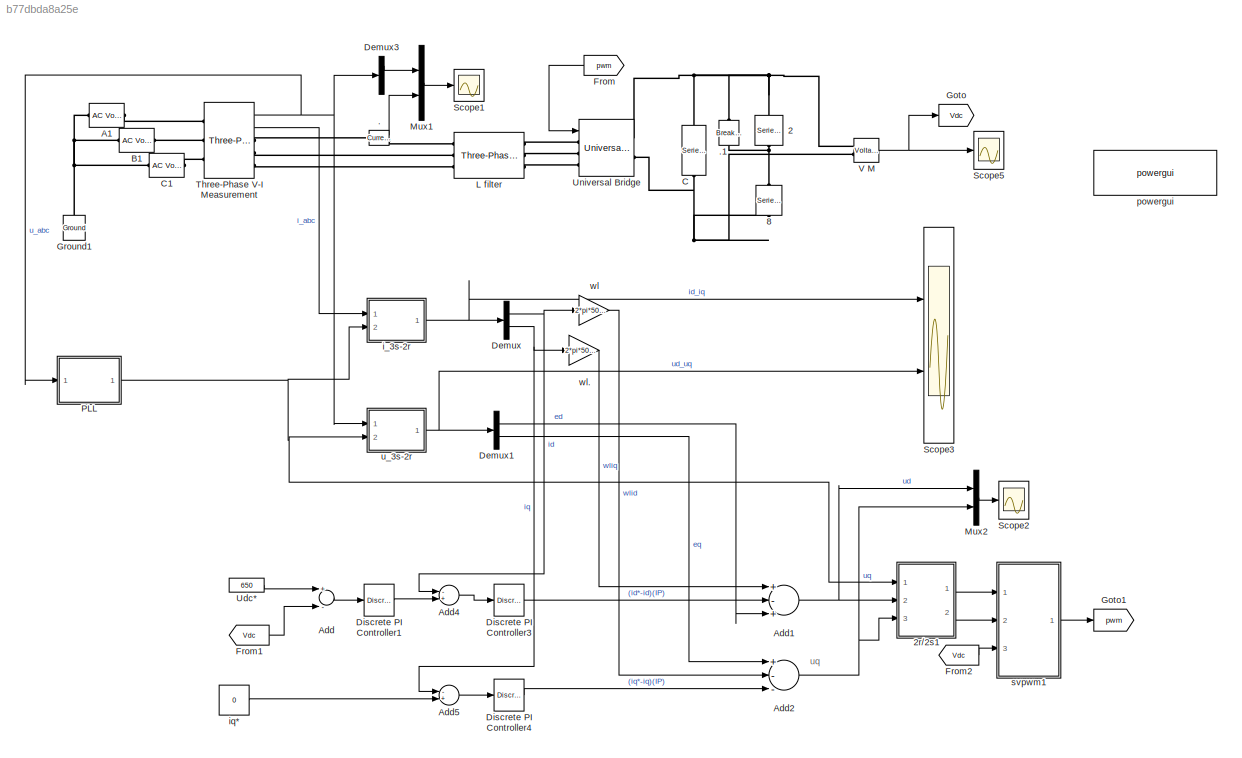
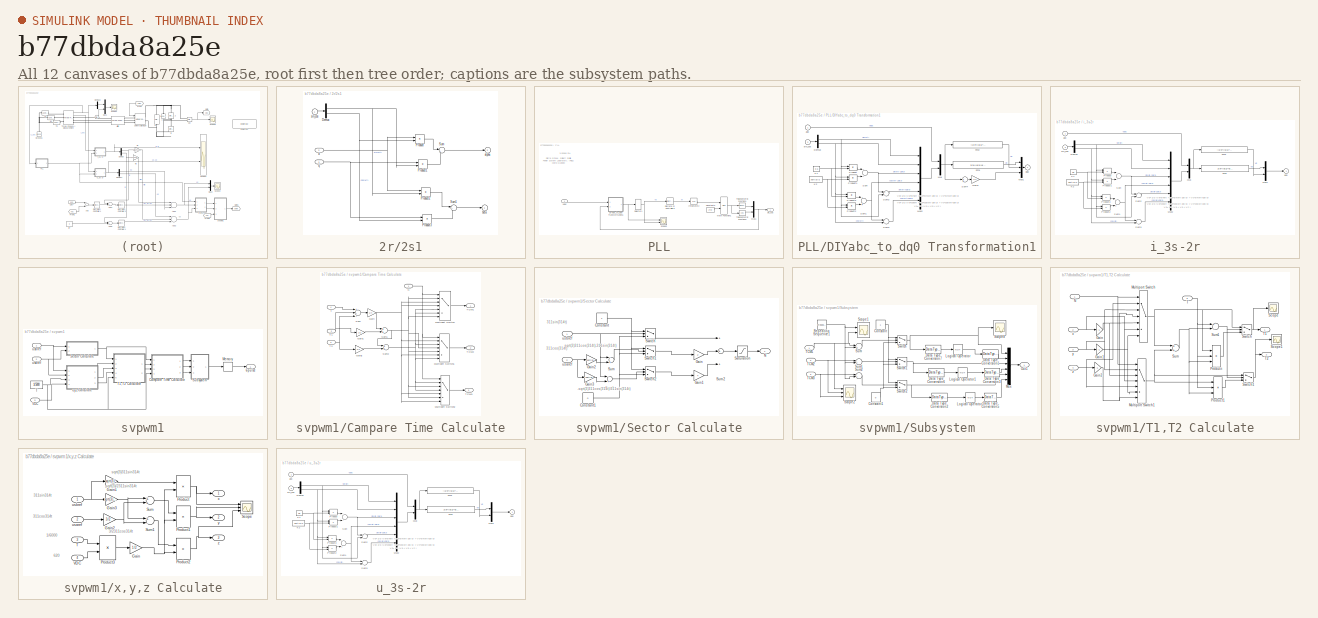
[diagram: thumbnail index - all 12 canvases of the model, root first then tree order]
MODEL slx_b77dbda8a25e
KIND model
CONFIG AbsTol = auto
CONFIG EnableMultiTasking = on
CONFIG FixedStep = 0.00001
CONFIG MaxStep = auto
CONFIG MinStep = auto
CONFIG RelTol = 1e-3
CONFIG SampleTimeConstraint = Unconstrained
CONFIG Solver = ode23tb
CONFIG SolverName = ode23tb
CONFIG StartTime = 0.0
CONFIG StopTime = 1.5
BLOCK [Reference] .  REF=powerlib/Measurements/Current Measurement
  Ports = [0, 1, 0, 0, 0, 1, 1]
  SourceBlock = powerlib/Measurements/Current Measurement
  SourceProductBaseCode = PS
  SourceProductName = Simscape Electrical
  SourceType = Current Measurement
BLOCK [Reference] .1  REF=powerlib/Elements/Breaker
  AttributesFormatString = \n
  Ports = [0, 0, 0, 0, 0, 1, 1]
  SourceBlock = powerlib/Elements/Breaker
  SourceProductBaseCode = PS
  SourceProductName = Simscape Electrical
  SourceType = Breaker
BLOCK [Reference] 2  REF=powerlib/Elements/Series RLC Branch
  Ports = [0, 0, 0, 0, 0, 1, 1]
  SourceBlock = powerlib/Elements/Series RLC Branch
  SourceProductBaseCode = PS
  SourceProductName = Simscape Electrical
  SourceType = Series RLC Branch
BLOCK [SubSystem] 2r//2s1
  Ports = [3, 2]
  RequestExecContextInheritance = off
BLOCK [Demux] 2r//2s1/Demux
  DisplayOption = bar
  Outputs = 2
  Ports = [1, 2]
BLOCK [Product] 2r//2s1/Product
  InputSameDT = off
  OutDataTypeStr = Inherit: Inherit via internal rule
  Ports = [2, 1]
  SaturateOnIntegerOverflow = off
BLOCK [Product] 2r//2s1/Product1
  InputSameDT = off
  OutDataTypeStr = Inherit: Inherit via internal rule
  Ports = [2, 1]
  SaturateOnIntegerOverflow = off
BLOCK [Product] 2r//2s1/Product2
  InputSameDT = off
  OutDataTypeStr = Inherit: Inherit via internal rule
  Ports = [2, 1]
  SaturateOnIntegerOverflow = off
BLOCK [Product] 2r//2s1/Product3
  InputSameDT = off
  OutDataTypeStr = Inherit: Inherit via internal rule
  Ports = [2, 1]
  SaturateOnIntegerOverflow = off
BLOCK [Sum] 2r//2s1/Sum
  IconShape = round
  InputSameDT = off
  Inputs = |+-
  OutDataTypeStr = Inherit: Inherit via internal rule
  Ports = [2, 1]
  SaturateOnIntegerOverflow = off
BLOCK [Sum] 2r//2s1/Sum1
  IconShape = round
  InputSameDT = off
  Inputs = |++
  OutDataTypeStr = Inherit: Inherit via internal rule
  Ports = [2, 1]
  SaturateOnIntegerOverflow = off
BLOCK [Outport] 2r//2s1/alpha
  IconDisplay = Port number
  InitialOutput = 0
  Port = 2
BLOCK [Outport] 2r//2s1/beta
  IconDisplay = Port number
  InitialOutput = 0
BLOCK [Inport] 2r//2s1/d
  IconDisplay = Port number
  Port = 2
BLOCK [Inport] 2r//2s1/q
  IconDisplay = Port number
  Port = 3
BLOCK [Inport] 2r//2s1/sin_cos
  IconDisplay = Port number
  PortDimensions = 2
BLOCK [Reference] 8  REF=powerlib/Elements/Series RLC Branch
  Ports = [0, 0, 0, 0, 0, 1, 1]
  SourceBlock = powerlib/Elements/Series RLC Branch
  SourceProductBaseCode = PS
  SourceProductName = Simscape Electrical
  SourceType = Series RLC Branch
BLOCK [Reference] A1  REF=powerlib/Electrical
Sources/AC Voltage Source
  Ports = [0, 0, 0, 0, 0, 1, 1]
  SourceBlock = powerlib/Electrical\nSources/AC Voltage Source
  SourceProductBaseCode = PS
  SourceProductName = Simscape Electrical
  SourceType = AC Voltage Source
BLOCK [Sum] Add
  InputSameDT = off
  Inputs = +-
  OutDataTypeStr = Inherit: Inherit via internal rule
  Ports = [2, 1]
  SaturateOnIntegerOverflow = off
BLOCK [Sum] Add1
  InputSameDT = off
  Inputs = +-+
  OutDataTypeStr = Inherit: Inherit via internal rule
  Ports = [3, 1]
  SaturateOnIntegerOverflow = off
BLOCK [Sum] Add2
  InputSameDT = off
  Inputs = +--
  OutDataTypeStr = Inherit: Inherit via internal rule
  Ports = [3, 1]
  SaturateOnIntegerOverflow = off
BLOCK [Sum] Add4
  InputSameDT = off
  Inputs = -+
  OutDataTypeStr = Inherit: Inherit via internal rule
  Ports = [2, 1]
  SaturateOnIntegerOverflow = off
BLOCK [Sum] Add5
  InputSameDT = off
  Inputs = -+
  OutDataTypeStr = Inherit: Inherit via internal rule
  Ports = [2, 1]
  SaturateOnIntegerOverflow = off
BLOCK [Reference] B1  REF=powerlib/Electrical
Sources/AC Voltage Source
  Ports = [0, 0, 0, 0, 0, 1, 1]
  SourceBlock = powerlib/Electrical\nSources/AC Voltage Source
  SourceProductBaseCode = PS
  SourceProductName = Simscape Electrical
  SourceType = AC Voltage Source
BLOCK [Reference] C   REF=powerlib/Elements/Series RLC Branch
  Ports = [0, 0, 0, 0, 0, 1, 1]
  SourceBlock = powerlib/Elements/Series RLC Branch
  SourceProductBaseCode = PS
  SourceProductName = Simscape Electrical
  SourceType = Series RLC Branch
BLOCK [Reference] C1  REF=powerlib/Electrical
Sources/AC Voltage Source
  Ports = [0, 0, 0, 0, 0, 1, 1]
  SourceBlock = powerlib/Electrical\nSources/AC Voltage Source
  SourceProductBaseCode = PS
  SourceProductName = Simscape Electrical
  SourceType = AC Voltage Source
BLOCK [Demux] Demux
  DisplayOption = bar
  Outputs = 2
  Ports = [1, 2]
BLOCK [Demux] Demux1
  DisplayOption = bar
  Outputs = 2
  Ports = [1, 2]
BLOCK [Demux] Demux3
  DisplayOption = bar
  Outputs = 3
  Ports = [1, 3]
BLOCK [Reference] Discrete PI Controller1  REF=powerlib_extras/Discrete 
Control Blocks/Discrete
PI Controller
  Ports = [1, 1]
  SourceBlock = powerlib_extras/Discrete \nControl Blocks/Discrete\nPI Controller
  SourceProductBaseCode = PS
  SourceProductName = Simscape Electrical
  SourceType = Discrete PI Controller
BLOCK [Reference] Discrete PI Controller3  REF=powerlib_extras/Discrete 
Control Blocks/Discrete
PI Controller
  Ports = [1, 1]
  SourceBlock = powerlib_extras/Discrete \nControl Blocks/Discrete\nPI Controller
  SourceProductBaseCode = PS
  SourceProductName = Simscape Electrical
  SourceType = Discrete PI Controller
BLOCK [Reference] Discrete PI Controller4  REF=powerlib_extras/Discrete 
Control Blocks/Discrete
PI Controller
  Ports = [1, 1]
  SourceBlock = powerlib_extras/Discrete \nControl Blocks/Discrete\nPI Controller
  SourceProductBaseCode = PS
  SourceProductName = Simscape Electrical
  SourceType = Discrete PI Controller
BLOCK [From] From
  GotoTag = pwm
  TagVisibility = global
BLOCK [From] From1
  GotoTag = Vdc
  TagVisibility = global
BLOCK [From] From2
  GotoTag = Vdc
  TagVisibility = global
BLOCK [Goto] Goto
  GotoTag = Vdc
  TagVisibility = global
BLOCK [Goto] Goto1
  GotoTag = pwm
  TagVisibility = global
BLOCK [Reference] Ground1  REF=powerlib/Elements/Ground
  Ports = [0, 0, 0, 0, 0, 1]
  SourceBlock = powerlib/Elements/Ground
  SourceProductBaseCode = PS
  SourceProductName = Simscape Electrical
  SourceType = Ground
BLOCK [Reference] L filter  REF=powerlib/Elements/Three-Phase
Series RLC Branch
  AttributesFormatString = \n
  Ports = [0, 0, 0, 0, 0, 3, 3]
  SourceBlock = powerlib/Elements/Three-Phase\nSeries RLC Branch
  SourceProductBaseCode = PS
  SourceProductName = Simscape Electrical
  SourceType = Three-Phase Series RLC Branch
BLOCK [Mux] Mux1
  DisplayOption = bar
  Inputs = 2
  Ports = [2, 1]
BLOCK [Mux] Mux2
  DisplayOption = bar
  Inputs = 2
  Ports = [2, 1]
BLOCK [SubSystem] PLL
  Ports = [1, 1]
  RequestExecContextInheritance = off
BLOCK [Constant] PLL/Constant3
  Value = 2*pi
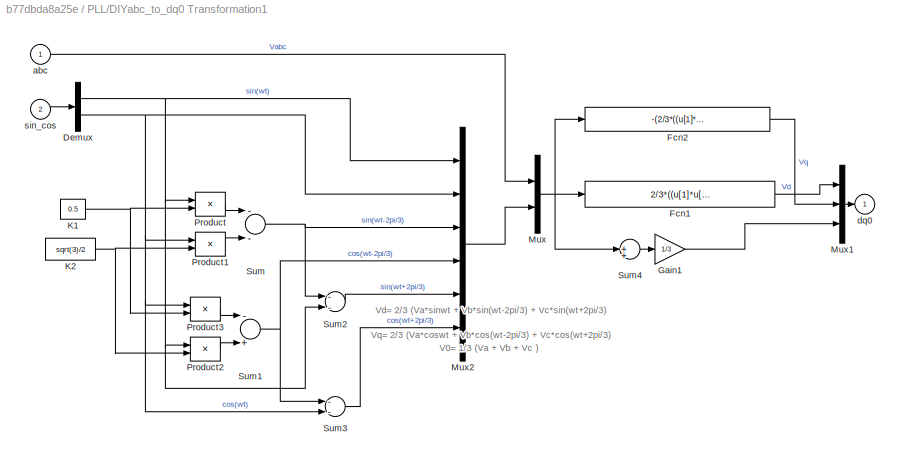
BLOCK [SubSystem] PLL/DIYabc_to_dq0 Transformation1
  AncestorBlock = powerlib_extras/Measurements/abc_to_dq0\nTransformation
  Ports = [2, 1]
  RequestExecContextInheritance = off
BLOCK [Demux] PLL/DIYabc_to_dq0 Transformation1/Demux
  DisplayOption = bar
  Outputs = 2
  Ports = [1, 2]
BLOCK [Fcn] PLL/DIYabc_to_dq0 Transformation1/Fcn1
  Expr = 2/3*((u[1]*u[5])+(u[2]*u[7])+(u[3]*u[9]))
BLOCK [Fcn] PLL/DIYabc_to_dq0 Transformation1/Fcn2
  Expr = -(2/3*((u[1]*u[4])+(u[2]*u[6])+(u[3]*u[8])))
BLOCK [Gain] PLL/DIYabc_to_dq0 Transformation1/Gain1
  Gain = 1/3
BLOCK [Constant] PLL/DIYabc_to_dq0 Transformation1/K1
  Value = 0.5
BLOCK [Constant] PLL/DIYabc_to_dq0 Transformation1/K2
  Value = sqrt(3)/2
BLOCK [Mux] PLL/DIYabc_to_dq0 Transformation1/Mux
  DisplayOption = bar
  Inputs = 2
  Ports = [2, 1]
BLOCK [Mux] PLL/DIYabc_to_dq0 Transformation1/Mux1
  DisplayOption = bar
  Inputs = 3
  Ports = [3, 1]
BLOCK [Mux] PLL/DIYabc_to_dq0 Transformation1/Mux2
  DisplayOption = bar
  Inputs = 6
  Ports = [6, 1]
BLOCK [Product] PLL/DIYabc_to_dq0 Transformation1/Product
  Ports = [2, 1]
  RndMeth = Floor
BLOCK [Product] PLL/DIYabc_to_dq0 Transformation1/Product1
  Ports = [2, 1]
  RndMeth = Floor
BLOCK [Product] PLL/DIYabc_to_dq0 Transformation1/Product2
  Ports = [2, 1]
  RndMeth = Floor
BLOCK [Product] PLL/DIYabc_to_dq0 Transformation1/Product3
  Ports = [2, 1]
  RndMeth = Floor
BLOCK [Sum] PLL/DIYabc_to_dq0 Transformation1/Sum
  Inputs = --
  Ports = [2, 1]
BLOCK [Sum] PLL/DIYabc_to_dq0 Transformation1/Sum1
  Inputs = -+
  Ports = [2, 1]
BLOCK [Sum] PLL/DIYabc_to_dq0 Transformation1/Sum2
  Inputs = --
  Ports = [2, 1]
BLOCK [Sum] PLL/DIYabc_to_dq0 Transformation1/Sum3
  Inputs = --
  Ports = [2, 1]
BLOCK [Sum] PLL/DIYabc_to_dq0 Transformation1/Sum4
  Inputs = 1
  Ports = [1, 1]
BLOCK [Inport] PLL/DIYabc_to_dq0 Transformation1/abc
  IconDisplay = Port number
  PortDimensions = 3
BLOCK [Outport] PLL/DIYabc_to_dq0 Transformation1/dq0
  IconDisplay = Port number
  InitialOutput = 0
BLOCK [Inport] PLL/DIYabc_to_dq0 Transformation1/sin_cos
  IconDisplay = Port number
  Port = 2
  PortDimensions = 2
BLOCK [Reference] PLL/Discrete PI Controller3  REF=powerlib_extras/Discrete 
Control Blocks/Discrete
PI Controller
  Ports = [1, 1]
  SourceBlock = powerlib_extras/Discrete \nControl Blocks/Discrete\nPI Controller
  SourceProductBaseCode = PS
  SourceProductName = Simscape Electrical
  SourceType = Discrete PI Controller
BLOCK [Integrator] PLL/Integrator2
  Ports = [1, 1]
BLOCK [Math] PLL/Math Function1
  Operator = mod
  Ports = [2, 1]
BLOCK [Mux] PLL/Mux1
  DisplayOption = bar
  Inputs = 2
  Ports = [2, 1]
BLOCK [Scope] PLL/Scope3
  Floating = off
  NumInputPorts = 2
  Ports = [2]
  ScopeSpecificationString = C++SS(StrPVP('Open','off'),StrPVP('TimeRange','auto'),StrPVP('TickLabels','OneTimeTick'),StrPVP('LimitDataPoints','off'),StrPVP('MaxDataPoints','5000'),StrPVP('SaveToWorkspace','off'),StrPVP('SaveName','ScopeData12'),StrPVP('YMin','-44.36843~-7.44785'),StrPVP('YMax','350.48538~18.20012'),StrPVP('BlockParamSampleInput','off'),StrPVP('BlockParamSampleTime','-1'),StrPVP('ZoomMode','on'),StrPVP('Grid'...<+201ch>
BLOCK [Selector] PLL/Selector1
  IndexOptions = Index vector (dialog)
  Indices = 2
  InputPortWidth = 3
  OutputSizes = 1
  Ports = [1, 1]
BLOCK [Trigonometry] PLL/Trigonometric Function1
  Ports = [1, 1]
BLOCK [Trigonometry] PLL/Trigonometric Function3
  Operator = cos
  Ports = [1, 1]
BLOCK [Inport] PLL/Vabc
  IconDisplay = Port number
  PortDimensions = 3
BLOCK [Outport] PLL/sin_cos
  IconDisplay = Port number
BLOCK [Scope] Scope1
  Floating = off
  NumInputPorts = 1
  Ports = [1]
  ScopeSpecificationString = C++SS(StrPVP('Open','off'),StrPVP('TimeRange','auto'),StrPVP('TickLabels','OneTimeTick'),StrPVP('LimitDataPoints','off'),StrPVP('MaxDataPoints','5000'),StrPVP('SaveToWorkspace','off'),StrPVP('SaveName','ScopeData'),StrPVP('YMin','-479.93424'),StrPVP('YMax','406.4876'),StrPVP('BlockParamSampleInput','off'),StrPVP('BlockParamSampleTime','-1'),StrPVP('ZoomMode','on'),StrPVP('Grid','on'),StrPVP('DataF...<+152ch>
BLOCK [Scope] Scope2
  Floating = off
  NumInputPorts = 1
  Ports = [1]
  ScopeSpecificationString = C++SS(StrPVP('Open','off'),StrPVP('TimeRange','auto'),StrPVP('TickLabels','OneTimeTick'),StrPVP('LimitDataPoints','off'),StrPVP('MaxDataPoints','5000'),StrPVP('SaveToWorkspace','off'),StrPVP('SaveName','ScopeData2'),StrPVP('YMin','-7003.21346'),StrPVP('YMax','2298.48553'),StrPVP('BlockParamSampleInput','off'),StrPVP('BlockParamSampleTime','-1'),StrPVP('ZoomMode','on'),StrPVP('Grid','on'),StrPVP('D...<+158ch>
BLOCK [Scope] Scope3
  Floating = off
  NumInputPorts = 2
  Ports = [2]
  ScopeSpecificationString = C++SS(StrPVP('Open','off'),StrPVP('TimeRange','auto'),StrPVP('TickLabels','OneTimeTick'),StrPVP('LimitDataPoints','off'),StrPVP('MaxDataPoints','5000'),StrPVP('SaveToWorkspace','off'),StrPVP('SaveName','ScopeData3'),StrPVP('YMin','-344.98603~-44.36843'),StrPVP('YMax','420.48098~350.48538'),StrPVP('BlockParamSampleInput','off'),StrPVP('BlockParamSampleTime','-1'),StrPVP('ZoomMode','on'),StrPVP('Gri...<+204ch>
BLOCK [Scope] Scope5
  Floating = off
  NumInputPorts = 1
  Ports = [1]
  ScopeSpecificationString = C++SS(StrPVP('Open','off'),StrPVP('TimeRange','auto'),StrPVP('TickLabels','OneTimeTick'),StrPVP('LimitDataPoints','off'),StrPVP('MaxDataPoints','5000'),StrPVP('SaveToWorkspace','on'),StrPVP('SaveName','ScopeData5'),StrPVP('YMin','461.71177'),StrPVP('YMax','790.31086'),StrPVP('BlockParamSampleInput','off'),StrPVP('BlockParamSampleTime','-1'),StrPVP('ZoomMode','on'),StrPVP('Grid','on'),StrPVP('DataF...<+152ch>
BLOCK [Reference] Three-Phase V-I Measurement  REF=powerlib/Measurements/Three-Phase
V-I Measurement
  Ports = [0, 2, 0, 0, 0, 3, 3]
  SourceBlock = powerlib/Measurements/Three-Phase\nV-I Measurement
  SourceProductBaseCode = PS
  SourceProductName = Simscape Electrical
  SourceType = Three-Phase VI Measurement
BLOCK [Constant] Udc*
  Value = 650
BLOCK [Reference] Universal Bridge  REF=powerlib/Power
Electronics/Universal Bridge
  Ports = [1, 0, 0, 0, 0, 3, 2]
  SourceBlock = powerlib/Power\nElectronics/Universal Bridge
  SourceProductBaseCode = PS
  SourceProductName = Simscape Electrical
  SourceType = Universal Bridge
BLOCK [Reference] V M  REF=powerlib/Measurements/Voltage Measurement
  Ports = [0, 1, 0, 0, 0, 2]
  SourceBlock = powerlib/Measurements/Voltage Measurement
  SourceProductBaseCode = PS
  SourceProductName = Simscape Electrical
  SourceType = Voltage Measurement
BLOCK [SubSystem] i_3s-2r
  AncestorBlock = powerlib_extras/Measurements/abc_to_dq0\nTransformation
  Ports = [2, 1]
  RequestExecContextInheritance = off
BLOCK [Demux] i_3s-2r/Demux
  DisplayOption = bar
  Outputs = 2
  Ports = [1, 2]
BLOCK [Fcn] i_3s-2r/Fcn1
  Expr = 2/3*((u[1]*u[5])+(u[2]*u[7])+(u[3]*u[9]))
BLOCK [Fcn] i_3s-2r/Fcn2
  Expr = -(2/3*((u[1]*u[4])+(u[2]*u[6])+(u[3]*u[8])))
BLOCK [Constant] i_3s-2r/K1
  Value = 0.5
BLOCK [Constant] i_3s-2r/K2
  Value = sqrt(3)/2
BLOCK [Mux] i_3s-2r/Mux
  DisplayOption = bar
  Inputs = 2
  Ports = [2, 1]
BLOCK [Mux] i_3s-2r/Mux1
  DisplayOption = bar
  Inputs = 2
  Ports = [2, 1]
BLOCK [Mux] i_3s-2r/Mux2
  DisplayOption = bar
  Inputs = 6
  Ports = [6, 1]
BLOCK [Product] i_3s-2r/Product
  Ports = [2, 1]
  RndMeth = Floor
BLOCK [Product] i_3s-2r/Product1
  Ports = [2, 1]
  RndMeth = Floor
BLOCK [Product] i_3s-2r/Product2
  Ports = [2, 1]
  RndMeth = Floor
BLOCK [Product] i_3s-2r/Product3
  Ports = [2, 1]
  RndMeth = Floor
BLOCK [Sum] i_3s-2r/Sum
  Inputs = --
  Ports = [2, 1]
BLOCK [Sum] i_3s-2r/Sum1
  Inputs = -+
  Ports = [2, 1]
BLOCK [Sum] i_3s-2r/Sum2
  Inputs = --
  Ports = [2, 1]
BLOCK [Sum] i_3s-2r/Sum3
  Inputs = --
  Ports = [2, 1]
BLOCK [Inport] i_3s-2r/abc
  IconDisplay = Port number
  PortDimensions = 3
BLOCK [Outport] i_3s-2r/dq0
  IconDisplay = Port number
  InitialOutput = 0
BLOCK [Inport] i_3s-2r/sin_cos
  IconDisplay = Port number
  Port = 2
  PortDimensions = 2
BLOCK [Constant] iq*
  Value = 0
BLOCK [Reference] powergui  REF=powerlib/powergui
  Ports = []
  SourceBlock = powerlib/powergui
  SourceProductBaseCode = PS
  SourceProductName = Simscape Electrical
  SourceType = PSB option menu block
BLOCK [SubSystem] svpwm1
  Ports = [3, 1]
  RequestExecContextInheritance = off
BLOCK [Outport] svpwm1/6pulse
  IconDisplay = Port number
BLOCK [SubSystem] svpwm1/Campare Time Calculate
  Ports = [4, 3]
  RequestExecContextInheritance = off
BLOCK [Gain] svpwm1/Campare Time Calculate/Gain
  Gain = 1/4
BLOCK [Gain] svpwm1/Campare Time Calculate/Gain1
  Gain = 1/2
BLOCK [Gain] svpwm1/Campare Time Calculate/Gain2
  Gain = 1/2
BLOCK [MultiPortSwitch] svpwm1/Campare Time Calculate/Multiport Switch
  InputSameDT = off
  Inputs = 6
  Ports = [7, 1]
BLOCK [MultiPortSwitch] svpwm1/Campare Time Calculate/Multiport Switch1
  InputSameDT = off
  Inputs = 6
  Ports = [7, 1]
BLOCK [MultiPortSwitch] svpwm1/Campare Time Calculate/Multiport Switch2
  InputSameDT = off
  Inputs = 6
  Ports = [7, 1]
BLOCK [Inport] svpwm1/Campare Time Calculate/N
  IconDisplay = Port number
BLOCK [Sum] svpwm1/Campare Time Calculate/Sum
  InputSameDT = off
  Inputs = +--
  OutDataTypeStr = Inherit: Inherit via internal rule
  Ports = [3, 1]
BLOCK [Sum] svpwm1/Campare Time Calculate/Sum1
  InputSameDT = off
  OutDataTypeStr = Inherit: Inherit via internal rule
  Ports = [2, 1]
BLOCK [Sum] svpwm1/Campare Time Calculate/Sum2
  InputSameDT = off
  OutDataTypeStr = Inherit: Inherit via internal rule
  Ports = [2, 1]
BLOCK [Inport] svpwm1/Campare Time Calculate/T
  IconDisplay = Port number
  Port = 4
BLOCK [Inport] svpwm1/Campare Time Calculate/T1
  IconDisplay = Port number
  Port = 2
BLOCK [Inport] svpwm1/Campare Time Calculate/T2
  IconDisplay = Port number
  Port = 3
BLOCK [Outport] svpwm1/Campare Time Calculate/TCM1
  IconDisplay = Port number
BLOCK [Outport] svpwm1/Campare Time Calculate/TCM2
  IconDisplay = Port number
  Port = 2
BLOCK [Outport] svpwm1/Campare Time Calculate/TCM3
  IconDisplay = Port number
  Port = 3
BLOCK [Memory] svpwm1/Memory
BLOCK [SubSystem] svpwm1/Sector Calculate
  Ports = [2, 1]
  RequestExecContextInheritance = off
BLOCK [Constant] svpwm1/Sector Calculate/Constant
BLOCK [Constant] svpwm1/Sector Calculate/Constant1
  Value = 0
BLOCK [Gain] svpwm1/Sector Calculate/Gain
  Gain = 2
BLOCK [Gain] svpwm1/Sector Calculate/Gain1
  Gain = 4
BLOCK [Gain] svpwm1/Sector Calculate/Gain2
  Gain = sqrt(3)
BLOCK [Gain] svpwm1/Sector Calculate/Gain3
  Gain = -sqrt(3)
BLOCK [Outport] svpwm1/Sector Calculate/N
  IconDisplay = Port number
BLOCK [Saturate] svpwm1/Sector Calculate/Saturation
  InputPortMap = u0
  LowerLimit = 1
  Ports = [1, 1]
  UpperLimit = 6
BLOCK [Sum] svpwm1/Sector Calculate/Sum
  InputSameDT = off
  Inputs = -+
  OutDataTypeStr = Inherit: Inherit via internal rule
  Ports = [2, 1]
BLOCK [Sum] svpwm1/Sector Calculate/Sum1
  InputSameDT = off
  Inputs = -+
  OutDataTypeStr = Inherit: Inherit via internal rule
  Ports = [2, 1]
BLOCK [Sum] svpwm1/Sector Calculate/Sum2
  InputSameDT = off
  Inputs = +++
  OutDataTypeStr = Inherit: Inherit via internal rule
  Ports = [3, 1]
BLOCK [Switch] svpwm1/Sector Calculate/Switch
  InputSameDT = off
BLOCK [Switch] svpwm1/Sector Calculate/Switch1
  InputSameDT = off
BLOCK [Switch] svpwm1/Sector Calculate/Switch2
  InputSameDT = off
BLOCK [Inport] svpwm1/Sector Calculate/usaref
  IconDisplay = Port number
  Port = 2
BLOCK [Inport] svpwm1/Sector Calculate/usbref
  IconDisplay = Port number
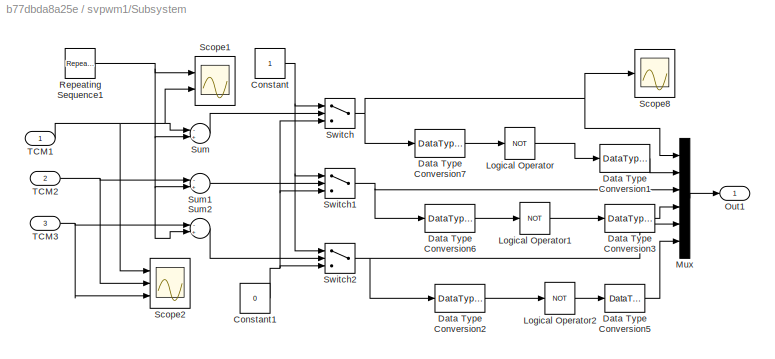
BLOCK [SubSystem] svpwm1/Subsystem
  Ports = [3, 1]
  RequestExecContextInheritance = off
BLOCK [Constant] svpwm1/Subsystem/Constant
BLOCK [Constant] svpwm1/Subsystem/Constant1
  Value = 0
BLOCK [DataTypeConversion] svpwm1/Subsystem/Data Type Conversion1
  OutDataTypeStr = double
BLOCK [DataTypeConversion] svpwm1/Subsystem/Data Type Conversion2
  OutDataTypeStr = boolean
BLOCK [DataTypeConversion] svpwm1/Subsystem/Data Type Conversion3
  OutDataTypeStr = double
BLOCK [DataTypeConversion] svpwm1/Subsystem/Data Type Conversion5
  OutDataTypeStr = double
BLOCK [DataTypeConversion] svpwm1/Subsystem/Data Type Conversion6
  OutDataTypeStr = boolean
BLOCK [DataTypeConversion] svpwm1/Subsystem/Data Type Conversion7
  OutDataTypeStr = boolean
BLOCK [Logic] svpwm1/Subsystem/Logical Operator
  AllPortsSameDT = off
  Operator = NOT
  Ports = [1, 1]
BLOCK [Logic] svpwm1/Subsystem/Logical Operator1
  AllPortsSameDT = off
  Operator = NOT
  Ports = [1, 1]
BLOCK [Logic] svpwm1/Subsystem/Logical Operator2
  AllPortsSameDT = off
  Operator = NOT
  Ports = [1, 1]
BLOCK [Mux] svpwm1/Subsystem/Mux
  DisplayOption = bar
  Inputs = 6
  Ports = [6, 1]
BLOCK [Outport] svpwm1/Subsystem/Out1
  IconDisplay = Port number
BLOCK [Reference] svpwm1/Subsystem/Repeating Sequence1  REF=simulink/Sources/Repeating
Sequence
  Ports = [0, 1]
  SourceBlock = simulink/Sources/Repeating\nSequence
  SourceProductBaseCode = SL
  SourceProductName = Simulink
  SourceType = Repeating table
BLOCK [Scope] svpwm1/Subsystem/Scope1
  Floating = off
  NumInputPorts = 2
  Ports = [2]
  ScopeSpecificationString = C++SS(StrPVP('Open','off'),StrPVP('TimeRange','0.028'),StrPVP('TickLabels','OneTimeTick'),StrPVP('LimitDataPoints','off'),StrPVP('MaxDataPoints','5000'),StrPVP('SaveToWorkspace','off'),StrPVP('SaveName','ScopeData15'),StrPVP('YMin','0~2.45e-005'),StrPVP('YMax','8.5e-005~2.64e-005'),StrPVP('BlockParamSampleInput','off'),StrPVP('BlockParamSampleTime','-1'),StrPVP('ZoomMode','xonly'),StrPVP('Grid','o...<+198ch>
BLOCK [Scope] svpwm1/Subsystem/Scope2
  Floating = off
  NumInputPorts = 3
  Ports = [3]
  ScopeSpecificationString = C++SS(StrPVP('Open','off'),StrPVP('TimeRange','0.07000000000000001'),StrPVP('TickLabels','OneTimeTick'),StrPVP('LimitDataPoints','off'),StrPVP('MaxDataPoints','5000'),StrPVP('SaveToWorkspace','off'),StrPVP('SaveName','ScopeData19'),StrPVP('YMin','2.25e-005~2.25e-005~2.25e-005'),StrPVP('YMax','6e-005~6e-005~6e-005'),StrPVP('BlockParamSampleInput','off'),StrPVP('BlockParamSampleTime','-1'),StrPVP('Z...<+261ch>
BLOCK [Scope] svpwm1/Subsystem/Scope8
  Floating = off
  NumInputPorts = 1
  Ports = [1]
  ScopeSpecificationString = C++SS(StrPVP('Open','off'),StrPVP('TimeRange','0.07000000000000001'),StrPVP('TickLabels','OneTimeTick'),StrPVP('LimitDataPoints','off'),StrPVP('MaxDataPoints','5000'),StrPVP('SaveToWorkspace','off'),StrPVP('SaveName','ScopeData13'),StrPVP('YMin','0'),StrPVP('YMax','2'),StrPVP('BlockParamSampleInput','off'),StrPVP('BlockParamSampleTime','-1'),StrPVP('ZoomMode','xonly'),StrPVP('Grid','on'),StrPVP('D...<+156ch>
BLOCK [Sum] svpwm1/Subsystem/Sum
  InputSameDT = off
  Inputs = -+
  OutDataTypeStr = Inherit: Inherit via internal rule
  Ports = [2, 1]
BLOCK [Sum] svpwm1/Subsystem/Sum1
  InputSameDT = off
  Inputs = -+
  OutDataTypeStr = Inherit: Inherit via internal rule
  Ports = [2, 1]
BLOCK [Sum] svpwm1/Subsystem/Sum2
  InputSameDT = off
  Inputs = -+
  OutDataTypeStr = Inherit: Inherit via internal rule
  Ports = [2, 1]
BLOCK [Switch] svpwm1/Subsystem/Switch
  InputSameDT = off
BLOCK [Switch] svpwm1/Subsystem/Switch1
  InputSameDT = off
BLOCK [Switch] svpwm1/Subsystem/Switch2
  InputSameDT = off
BLOCK [Inport] svpwm1/Subsystem/TCM1
  IconDisplay = Port number
BLOCK [Inport] svpwm1/Subsystem/TCM2
  IconDisplay = Port number
  Port = 2
BLOCK [Inport] svpwm1/Subsystem/TCM3
  IconDisplay = Port number
  Port = 3
BLOCK [Constant] svpwm1/T
  Value = 1/5000
BLOCK [SubSystem] svpwm1/T1,T2 Calculate
  Ports = [5, 2]
  RequestExecContextInheritance = off
BLOCK [Gain] svpwm1/T1,T2 Calculate/Gain
  Gain = -1
BLOCK [Gain] svpwm1/T1,T2 Calculate/Gain1
  Gain = -1
BLOCK [Gain] svpwm1/T1,T2 Calculate/Gain2
  Gain = -1
BLOCK [MultiPortSwitch] svpwm1/T1,T2 Calculate/Multiport Switch
  InputSameDT = off
  Inputs = 6
  Ports = [7, 1]
BLOCK [MultiPortSwitch] svpwm1/T1,T2 Calculate/Multiport Switch1
  InputSameDT = off
  Inputs = 6
  Ports = [7, 1]
BLOCK [Inport] svpwm1/T1,T2 Calculate/N
  IconDisplay = Port number
BLOCK [Product] svpwm1/T1,T2 Calculate/Product
  InputSameDT = off
  Inputs = **/
  Ports = [3, 1]
  RndMeth = Floor
BLOCK [Product] svpwm1/T1,T2 Calculate/Product1
  InputSameDT = off
  Inputs = **/
  Ports = [3, 1]
  RndMeth = Floor
BLOCK [Scope] svpwm1/T1,T2 Calculate/Scope
  Floating = off
  NumInputPorts = 1
  Ports = [1]
  ScopeSpecificationString = C++SS(StrPVP('Open','off'),StrPVP('TimeRange','auto'),StrPVP('TickLabels','OneTimeTick'),StrPVP('LimitDataPoints','on'),StrPVP('MaxDataPoints','5000'),StrPVP('SaveToWorkspace','off'),StrPVP('SaveName','ScopeData16'),StrPVP('YMin','3.5e-005'),StrPVP('YMax','6.25e-005'),StrPVP('BlockParamSampleInput','off'),StrPVP('BlockParamSampleTime','-1'),StrPVP('ZoomMode','on'),StrPVP('Grid','on'),StrPVP('DataF...<+152ch>
BLOCK [Scope] svpwm1/T1,T2 Calculate/Scope1
  Floating = off
  NumInputPorts = 1
  Ports = [1]
  ScopeSpecificationString = C++SS(StrPVP('Open','off'),StrPVP('TimeRange','auto'),StrPVP('TickLabels','OneTimeTick'),StrPVP('LimitDataPoints','on'),StrPVP('MaxDataPoints','5000'),StrPVP('SaveToWorkspace','off'),StrPVP('SaveName','ScopeData17'),StrPVP('YMin','1.3e-007'),StrPVP('YMax','2e-007'),StrPVP('BlockParamSampleInput','off'),StrPVP('BlockParamSampleTime','-1'),StrPVP('ZoomMode','on'),StrPVP('Grid','on'),StrPVP('DataForm...<+151ch>
BLOCK [Sum] svpwm1/T1,T2 Calculate/Sum
  InputSameDT = off
  OutDataTypeStr = Inherit: Inherit via internal rule
  Ports = [2, 1]
BLOCK [Sum] svpwm1/T1,T2 Calculate/Sum1
  InputSameDT = off
  Inputs = +-
  OutDataTypeStr = Inherit: Inherit via internal rule
  Ports = [2, 1]
BLOCK [Switch] svpwm1/T1,T2 Calculate/Switch
  InputSameDT = off
BLOCK [Switch] svpwm1/T1,T2 Calculate/Switch1
  InputSameDT = off
BLOCK [Inport] svpwm1/T1,T2 Calculate/T
  IconDisplay = Port number
  Port = 5
BLOCK [Outport] svpwm1/T1,T2 Calculate/T1
  IconDisplay = Port number
BLOCK [Outport] svpwm1/T1,T2 Calculate/T2
  IconDisplay = Port number
  Port = 2
BLOCK [Inport] svpwm1/T1,T2 Calculate/x
  IconDisplay = Port number
  Port = 2
BLOCK [Inport] svpwm1/T1,T2 Calculate/y
  IconDisplay = Port number
  Port = 3
BLOCK [Inport] svpwm1/T1,T2 Calculate/z
  IconDisplay = Port number
  Port = 4
BLOCK [Inport] svpwm1/VDC
  IconDisplay = Port number
  Port = 3
BLOCK [Inport] svpwm1/usaref
  IconDisplay = Port number
  Port = 2
BLOCK [Inport] svpwm1/usbref
  IconDisplay = Port number
BLOCK [SubSystem] svpwm1/x,y,z Calculate
  Ports = [4, 3]
  RequestExecContextInheritance = off
BLOCK [Gain] svpwm1/x,y,z Calculate/Gain
  Gain = 1/2
BLOCK [Gain] svpwm1/x,y,z Calculate/Gain1
  Gain = sqrt(3)
BLOCK [Gain] svpwm1/x,y,z Calculate/Gain2
  Gain = 3/2
BLOCK [Gain] svpwm1/x,y,z Calculate/Gain3
  Gain = sqrt(3)/2
BLOCK [Product] svpwm1/x,y,z Calculate/Product
  InputSameDT = off
  Ports = [2, 1]
  RndMeth = Floor
BLOCK [Product] svpwm1/x,y,z Calculate/Product1
  InputSameDT = off
  Ports = [2, 1]
  RndMeth = Floor
BLOCK [Product] svpwm1/x,y,z Calculate/Product2
  InputSameDT = off
  Ports = [2, 1]
  RndMeth = Floor
BLOCK [Product] svpwm1/x,y,z Calculate/Product3
  InputSameDT = off
  Inputs = */
  Ports = [2, 1]
  RndMeth = Floor
BLOCK [Scope] svpwm1/x,y,z Calculate/Scope
  Floating = off
  NumInputPorts = 3
  Ports = [3]
  ScopeSpecificationString = C++SS(StrPVP('Open','off'),StrPVP('TimeRange','auto'),StrPVP('TickLabels','OneTimeTick'),StrPVP('LimitDataPoints','off'),StrPVP('MaxDataPoints','5000'),StrPVP('SaveToWorkspace','off'),StrPVP('SaveName','ScopeData18'),StrPVP('YMin','-8e-005~-8e-005~-8e-005'),StrPVP('YMax','8e-005~8e-005~8e-005'),StrPVP('BlockParamSampleInput','off'),StrPVP('BlockParamSampleTime','-1'),StrPVP('ZoomMode','on'),StrPVP...<+237ch>
BLOCK [Sum] svpwm1/x,y,z Calculate/Sum
  InputSameDT = off
  OutDataTypeStr = Inherit: Inherit via internal rule
  Ports = [2, 1]
BLOCK [Sum] svpwm1/x,y,z Calculate/Sum1
  InputSameDT = off
  Inputs = +-
  OutDataTypeStr = Inherit: Inherit via internal rule
  Ports = [2, 1]
BLOCK [Inport] svpwm1/x,y,z Calculate/T
  IconDisplay = Port number
  Port = 3
BLOCK [Inport] svpwm1/x,y,z Calculate/VDC
  IconDisplay = Port number
  Port = 4
BLOCK [Inport] svpwm1/x,y,z Calculate/usaref
  IconDisplay = Port number
  Port = 2
BLOCK [Inport] svpwm1/x,y,z Calculate/usbref
  IconDisplay = Port number
BLOCK [Outport] svpwm1/x,y,z Calculate/x
  IconDisplay = Port number
BLOCK [Outport] svpwm1/x,y,z Calculate/y
  IconDisplay = Port number
  Port = 2
BLOCK [Outport] svpwm1/x,y,z Calculate/z
  IconDisplay = Port number
  Port = 3
BLOCK [SubSystem] u_3s-2r
  AncestorBlock = powerlib_extras/Measurements/abc_to_dq0\nTransformation
  Ports = [2, 1]
  RequestExecContextInheritance = off
BLOCK [Demux] u_3s-2r/Demux
  DisplayOption = bar
  Outputs = 2
  Ports = [1, 2]
BLOCK [Fcn] u_3s-2r/Fcn1
  Expr = 2/3*((u[1]*u[5])+(u[2]*u[7])+(u[3]*u[9]))
BLOCK [Fcn] u_3s-2r/Fcn2
  Expr = -(2/3*((u[1]*u[4])+(u[2]*u[6])+(u[3]*u[8])))
BLOCK [Constant] u_3s-2r/K1
  Value = 0.5
BLOCK [Constant] u_3s-2r/K2
  Value = sqrt(3)/2
BLOCK [Mux] u_3s-2r/Mux
  DisplayOption = bar
  Inputs = 2
  Ports = [2, 1]
BLOCK [Mux] u_3s-2r/Mux1
  DisplayOption = bar
  Inputs = 2
  Ports = [2, 1]
BLOCK [Mux] u_3s-2r/Mux2
  DisplayOption = bar
  Inputs = 6
  Ports = [6, 1]
BLOCK [Product] u_3s-2r/Product
  Ports = [2, 1]
  RndMeth = Floor
BLOCK [Product] u_3s-2r/Product1
  Ports = [2, 1]
  RndMeth = Floor
BLOCK [Product] u_3s-2r/Product2
  Ports = [2, 1]
  RndMeth = Floor
BLOCK [Product] u_3s-2r/Product3
  Ports = [2, 1]
  RndMeth = Floor
BLOCK [Sum] u_3s-2r/Sum
  Inputs = --
  Ports = [2, 1]
BLOCK [Sum] u_3s-2r/Sum1
  Inputs = -+
  Ports = [2, 1]
BLOCK [Sum] u_3s-2r/Sum2
  Inputs = --
  Ports = [2, 1]
BLOCK [Sum] u_3s-2r/Sum3
  Inputs = --
  Ports = [2, 1]
BLOCK [Inport] u_3s-2r/abc
  IconDisplay = Port number
  PortDimensions = 3
BLOCK [Outport] u_3s-2r/dq0
  IconDisplay = Port number
  InitialOutput = 0
BLOCK [Inport] u_3s-2r/sin_cos
  IconDisplay = Port number
  Port = 2
  PortDimensions = 2
BLOCK [Gain] wl
  Gain = 2*pi*50*0.002
  OutDataTypeStr = Inherit: Inherit via internal rule
  ParamDataTypeStr = Inherit: Inherit via internal rule
  SaturateOnIntegerOverflow = off
BLOCK [Gain] wl.
  Gain = 2*pi*50*0.002
  OutDataTypeStr = Inherit: Inherit via internal rule
  ParamDataTypeStr = Inherit: Inherit via internal rule
  SaturateOnIntegerOverflow = off
ANNOTATION (root): uq
ANNOTATION PLL: 3-phase PLL
ANNOTATION PLL: Pierre Giroux, Gilbert Sybille Power System Laboratory, IREQ Hydro-Quebec
ANNOTATION PLL/DIYabc_to_dq0 Transformation1: V0= 1/3 (Va + Vb + Vc )
ANNOTATION PLL/DIYabc_to_dq0 Transformation1: Vd= 2/3 (Va*sinwt + Vb*sin(wt-2pi/3) + Vc*sin(wt+2pi/3)
ANNOTATION PLL/DIYabc_to_dq0 Transformation1: Vq= 2/3 (Va*coswt + Vb*cos(wt-2pi/3) + Vc*cos(wt+2pi/3)
ANNOTATION i_3s-2r: V0= 1/3 (Va + Vb + Vc )
ANNOTATION i_3s-2r: Vd= 2/3 (Va*sinwt + Vb*sin(wt-2pi/3) + Vc*sin(wt+2pi/3)
ANNOTATION i_3s-2r: Vq= 2/3 (Va*coswt + Vb*cos(wt-2pi/3) + Vc*cos(wt+2pi/3)
ANNOTATION svpwm1/Sector Calculate: -sqrt(3)311cos(314t)-311sin(314t)
ANNOTATION svpwm1/Sector Calculate: 311cos(314t)
ANNOTATION svpwm1/Sector Calculate: 311sin(314t)
ANNOTATION svpwm1/Sector Calculate: sqrt(3)311cos(314t)-311sin(314t)
ANNOTATION svpwm1/x,y,z Calculate: 1/6000
ANNOTATION svpwm1/x,y,z Calculate: 3/2311cos314t
ANNOTATION svpwm1/x,y,z Calculate: 311cos314t
ANNOTATION svpwm1/x,y,z Calculate: 311sin314t
ANNOTATION svpwm1/x,y,z Calculate: 620
ANNOTATION svpwm1/x,y,z Calculate: sqrt(3)/2311sin314t
ANNOTATION svpwm1/x,y,z Calculate: sqrt(3)311sin314t
ANNOTATION u_3s-2r: V0= 1/3 (Va + Vb + Vc )
ANNOTATION u_3s-2r: Vd= 2/3 (Va*sinwt + Vb*sin(wt-2pi/3) + Vc*sin(wt+2pi/3)
ANNOTATION u_3s-2r: Vq= 2/3 (Va*coswt + Vb*cos(wt-2pi/3) + Vc*cos(wt+2pi/3)
LINE .:1 -> Mux1:2
NET 2r//2s1/Demux:1 -> 2r//2s1/Product1:2, 2r//2s1/Product2:2
NET 2r//2s1/Demux:2 -> 2r//2s1/Product3:2, 2r//2s1/Product:2
LINE 2r//2s1/Product1:1 -> 2r//2s1/Sum:2
LINE 2r//2s1/Product2:1 -> 2r//2s1/Sum1:1
LINE 2r//2s1/Product3:1 -> 2r//2s1/Sum1:2
LINE 2r//2s1/Product:1 -> 2r//2s1/Sum:1
LINE 2r//2s1/Sum1:1 -> 2r//2s1/beta:1
LINE 2r//2s1/Sum:1 -> 2r//2s1/alpha:1
NET 2r//2s1/d:1 -> 2r//2s1/Product2:1, 2r//2s1/Product:1
NET 2r//2s1/q:1 -> 2r//2s1/Product1:1, 2r//2s1/Product3:1
LINE 2r//2s1/sin_cos:1 -> 2r//2s1/Demux:1
LINE 2r//2s1:1 -> svpwm1:1
LINE 2r//2s1:2 -> svpwm1:2
NET Add1:1 -> 2r//2s1:2, Mux2:1
NET Add2:1 -> 2r//2s1:3, Mux2:2
LINE Add4:1 -> Discrete PI Controller3:1
LINE Add5:1 -> Discrete PI Controller4:1
LINE Add:1 -> Discrete PI Controller1:1
LINE Demux1:1 -> Add1:3
LINE Demux1:2 -> Add2:1
LINE Demux3:1 -> Mux1:1
NET Demux:1 -> Add4:1, wl:1
NET Demux:2 -> Add5:1, wl.:1
LINE Discrete PI Controller1:1 -> Add4:2
LINE Discrete PI Controller3:1 -> Add1:2
LINE Discrete PI Controller4:1 -> Add2:3
LINE From1:1 -> Add:2
LINE From2:1 -> svpwm1:3
LINE From:1 -> Universal Bridge:1
LINE Mux1:1 -> Scope1:1
LINE Mux2:1 -> Scope2:1
LINE PLL/Constant3:1 -> PLL/Math Function1:2
NET PLL/DIYabc_to_dq0 Transformation1:1 -> PLL/Scope3:1, PLL/Selector1:1
LINE PLL/Discrete PI Controller3:1 -> PLL/Integrator2:1
LINE PLL/Integrator2:1 -> PLL/Math Function1:1
NET PLL/Math Function1:1 -> PLL/Trigonometric Function1:1, PLL/Trigonometric Function3:1
NET PLL/Mux1:1 -> PLL/DIYabc_to_dq0 Transformation1:2, PLL/sin_cos:1
NET PLL/Selector1:1 -> PLL/Discrete PI Controller3:1, PLL/Scope3:2
LINE PLL/Trigonometric Function1:1 -> PLL/Mux1:1
LINE PLL/Trigonometric Function3:1 -> PLL/Mux1:2
LINE PLL/Vabc:1 -> PLL/DIYabc_to_dq0 Transformation1:1
NET PLL:1 -> 2r//2s1:1, i_3s-2r:2, u_3s-2r:2
NET Three-Phase V-I Measurement:1 -> Demux3:1, PLL:1, u_3s-2r:1
LINE Three-Phase V-I Measurement:2 -> i_3s-2r:1
LINE Udc*:1 -> Add:1
NET V M:1 -> Goto:1, Scope5:1
NET i_3s-2r:1 -> Demux:1, Scope3:1
LINE iq*:1 -> Add5:2
LINE svpwm1/Campare Time Calculate/Gain1:1 -> svpwm1/Campare Time Calculate/Sum1:2
LINE svpwm1/Campare Time Calculate/Gain2:1 -> svpwm1/Campare Time Calculate/Sum2:2
NET svpwm1/Campare Time Calculate/Gain:1 -> svpwm1/Campare Time Calculate/Multiport Switch1:2, svpwm1/Campare Time Calculate/Multiport Switch1:6, svpwm1/Campare Time Calculate/Multiport Switch2:5, svpwm1/Campare Time Calculate/Multiport Switch2:7, svpwm1/Campare Time Calculate/Multiport Switch:3, svpwm1/Campare Time Calculate/Multiport Switch:4, svpwm1/Campare Time Calculate/Sum1:1
LINE svpwm1/Campare Time Calculate/Multiport Switch1:1 -> svpwm1/Campare Time Calculate/TCM2:1
LINE svpwm1/Campare Time Calculate/Multiport Switch2:1 -> svpwm1/Campare Time Calculate/TCM3:1
LINE svpwm1/Campare Time Calculate/Multiport Switch:1 -> svpwm1/Campare Time Calculate/TCM1:1
NET svpwm1/Campare Time Calculate/N:1 -> svpwm1/Campare Time Calculate/Multiport Switch1:1, svpwm1/Campare Time Calculate/Multiport Switch2:1, svpwm1/Campare Time Calculate/Multiport Switch:1
NET svpwm1/Campare Time Calculate/Sum1:1 -> svpwm1/Campare Time Calculate/Multiport Switch1:4, svpwm1/Campare Time Calculate/Multiport Switch1:5, svpwm1/Campare Time Calculate/Multiport Switch2:3, svpwm1/Campare Time Calculate/Multiport Switch2:6, svpwm1/Campare Time Calculate/Multiport Switch:2, svpwm1/Campare Time Calculate/Multiport Switch:7, svpwm1/Campare Time Calculate/Sum2:1
NET svpwm1/Campare Time Calculate/Sum2:1 -> svpwm1/Campare Time Calculate/Multiport Switch1:3, svpwm1/Campare Time Calculate/Multiport Switch1:7, svpwm1/Campare Time Calculate/Multiport Switch2:2, svpwm1/Campare Time Calculate/Multiport Switch2:4, svpwm1/Campare Time Calculate/Multiport Switch:5, svpwm1/Campare Time Calculate/Multiport Switch:6
LINE svpwm1/Campare Time Calculate/Sum:1 -> svpwm1/Campare Time Calculate/Gain:1
NET svpwm1/Campare Time Calculate/T1:1 -> svpwm1/Campare Time Calculate/Gain1:1, svpwm1/Campare Time Calculate/Sum:2
NET svpwm1/Campare Time Calculate/T2:1 -> svpwm1/Campare Time Calculate/Gain2:1, svpwm1/Campare Time Calculate/Sum:3
LINE svpwm1/Campare Time Calculate/T:1 -> svpwm1/Campare Time Calculate/Sum:1
LINE svpwm1/Campare Time Calculate:1 -> svpwm1/Subsystem:1
LINE svpwm1/Campare Time Calculate:2 -> svpwm1/Subsystem:2
LINE svpwm1/Campare Time Calculate:3 -> svpwm1/Subsystem:3
LINE svpwm1/Memory:1 -> svpwm1/6pulse:1
NET svpwm1/Sector Calculate/Constant1:1 -> svpwm1/Sector Calculate/Switch1:3, svpwm1/Sector Calculate/Switch2:3, svpwm1/Sector Calculate/Switch:3
NET svpwm1/Sector Calculate/Constant:1 -> svpwm1/Sector Calculate/Switch1:1, svpwm1/Sector Calculate/Switch2:1, svpwm1/Sector Calculate/Switch:1
LINE svpwm1/Sector Calculate/Gain1:1 -> svpwm1/Sector Calculate/Sum2:3
LINE svpwm1/Sector Calculate/Gain2:1 -> svpwm1/Sector Calculate/Sum:2
LINE svpwm1/Sector Calculate/Gain3:1 -> svpwm1/Sector Calculate/Sum1:2
LINE svpwm1/Sector Calculate/Gain:1 -> svpwm1/Sector Calculate/Sum2:2
LINE svpwm1/Sector Calculate/Saturation:1 -> svpwm1/Sector Calculate/N:1
LINE svpwm1/Sector Calculate/Sum1:1 -> svpwm1/Sector Calculate/Switch2:2
LINE svpwm1/Sector Calculate/Sum2:1 -> svpwm1/Sector Calculate/Saturation:1
LINE svpwm1/Sector Calculate/Sum:1 -> svpwm1/Sector Calculate/Switch1:2
LINE svpwm1/Sector Calculate/Switch1:1 -> svpwm1/Sector Calculate/Gain:1
LINE svpwm1/Sector Calculate/Switch2:1 -> svpwm1/Sector Calculate/Gain1:1
LINE svpwm1/Sector Calculate/Switch:1 -> svpwm1/Sector Calculate/Sum2:1
NET svpwm1/Sector Calculate/usaref:1 -> svpwm1/Sector Calculate/Gain2:1, svpwm1/Sector Calculate/Gain3:1
NET svpwm1/Sector Calculate/usbref:1 -> svpwm1/Sector Calculate/Sum1:1, svpwm1/Sector Calculate/Sum:1, svpwm1/Sector Calculate/Switch:2
NET svpwm1/Sector Calculate:1 -> svpwm1/Campare Time Calculate:1, svpwm1/T1,T2 Calculate:1
NET svpwm1/Subsystem/Constant1:1 -> svpwm1/Subsystem/Switch1:3, svpwm1/Subsystem/Switch2:3, svpwm1/Subsystem/Switch:3
NET svpwm1/Subsystem/Constant:1 -> svpwm1/Subsystem/Switch1:1, svpwm1/Subsystem/Switch2:1, svpwm1/Subsystem/Switch:1
LINE svpwm1/Subsystem/Data Type Conversion1:1 -> svpwm1/Subsystem/Mux:2
LINE svpwm1/Subsystem/Data Type Conversion2:1 -> svpwm1/Subsystem/Logical Operator2:1
LINE svpwm1/Subsystem/Data Type Conversion3:1 -> svpwm1/Subsystem/Mux:4
LINE svpwm1/Subsystem/Data Type Conversion5:1 -> svpwm1/Subsystem/Mux:6
LINE svpwm1/Subsystem/Data Type Conversion6:1 -> svpwm1/Subsystem/Logical Operator1:1
LINE svpwm1/Subsystem/Data Type Conversion7:1 -> svpwm1/Subsystem/Logical Operator:1
LINE svpwm1/Subsystem/Logical Operator1:1 -> svpwm1/Subsystem/Data Type Conversion3:1
LINE svpwm1/Subsystem/Logical Operator2:1 -> svpwm1/Subsystem/Data Type Conversion5:1
LINE svpwm1/Subsystem/Logical Operator:1 -> svpwm1/Subsystem/Data Type Conversion1:1
LINE svpwm1/Subsystem/Mux:1 -> svpwm1/Subsystem/Out1:1
NET svpwm1/Subsystem/Repeating Sequence1:1 -> svpwm1/Subsystem/Scope1:1, svpwm1/Subsystem/Sum1:2, svpwm1/Subsystem/Sum2:2, svpwm1/Subsystem/Sum:2
LINE svpwm1/Subsystem/Sum1:1 -> svpwm1/Subsystem/Switch1:2
LINE svpwm1/Subsystem/Sum2:1 -> svpwm1/Subsystem/Switch2:2
LINE svpwm1/Subsystem/Sum:1 -> svpwm1/Subsystem/Switch:2
NET svpwm1/Subsystem/Switch1:1 -> svpwm1/Subsystem/Data Type Conversion6:1, svpwm1/Subsystem/Mux:3
NET svpwm1/Subsystem/Switch2:1 -> svpwm1/Subsystem/Data Type Conversion2:1, svpwm1/Subsystem/Mux:5
NET svpwm1/Subsystem/Switch:1 -> svpwm1/Subsystem/Data Type Conversion7:1, svpwm1/Subsystem/Mux:1, svpwm1/Subsystem/Scope8:1
NET svpwm1/Subsystem/TCM1:1 -> svpwm1/Subsystem/Scope1:2, svpwm1/Subsystem/Scope2:1, svpwm1/Subsystem/Sum:1
NET svpwm1/Subsystem/TCM2:1 -> svpwm1/Subsystem/Scope2:2, svpwm1/Subsystem/Sum1:1
NET svpwm1/Subsystem/TCM3:1 -> svpwm1/Subsystem/Scope2:3, svpwm1/Subsystem/Sum2:1
LINE svpwm1/Subsystem:1 -> svpwm1/Memory:1
NET svpwm1/T1,T2 Calculate/Gain1:1 -> svpwm1/T1,T2 Calculate/Multiport Switch1:6, svpwm1/T1,T2 Calculate/Multiport Switch:7
NET svpwm1/T1,T2 Calculate/Gain2:1 -> svpwm1/T1,T2 Calculate/Multiport Switch1:7, svpwm1/T1,T2 Calculate/Multiport Switch:4
NET svpwm1/T1,T2 Calculate/Gain:1 -> svpwm1/T1,T2 Calculate/Multiport Switch1:3, svpwm1/T1,T2 Calculate/Multiport Switch:5
NET svpwm1/T1,T2 Calculate/Multiport Switch1:1 -> svpwm1/T1,T2 Calculate/Product1:1, svpwm1/T1,T2 Calculate/Sum:2, svpwm1/T1,T2 Calculate/Switch1:1
NET svpwm1/T1,T2 Calculate/Multiport Switch:1 -> svpwm1/T1,T2 Calculate/Product:1, svpwm1/T1,T2 Calculate/Sum:1, svpwm1/T1,T2 Calculate/Switch:1
NET svpwm1/T1,T2 Calculate/N:1 -> svpwm1/T1,T2 Calculate/Multiport Switch1:1, svpwm1/T1,T2 Calculate/Multiport Switch:1
LINE svpwm1/T1,T2 Calculate/Product1:1 -> svpwm1/T1,T2 Calculate/Switch1:3
LINE svpwm1/T1,T2 Calculate/Product:1 -> svpwm1/T1,T2 Calculate/Switch:3
NET svpwm1/T1,T2 Calculate/Sum1:1 -> svpwm1/T1,T2 Calculate/Switch1:2, svpwm1/T1,T2 Calculate/Switch:2
NET svpwm1/T1,T2 Calculate/Sum:1 -> svpwm1/T1,T2 Calculate/Product1:3, svpwm1/T1,T2 Calculate/Product:3, svpwm1/T1,T2 Calculate/Sum1:2
NET svpwm1/T1,T2 Calculate/Switch1:1 -> svpwm1/T1,T2 Calculate/Scope1:1, svpwm1/T1,T2 Calculate/T2:1
NET svpwm1/T1,T2 Calculate/Switch:1 -> svpwm1/T1,T2 Calculate/Scope:1, svpwm1/T1,T2 Calculate/T1:1
NET svpwm1/T1,T2 Calculate/T:1 -> svpwm1/T1,T2 Calculate/Product1:2, svpwm1/T1,T2 Calculate/Product:2, svpwm1/T1,T2 Calculate/Sum1:1
NET svpwm1/T1,T2 Calculate/x:1 -> svpwm1/T1,T2 Calculate/Gain:1, svpwm1/T1,T2 Calculate/Multiport Switch1:4, svpwm1/T1,T2 Calculate/Multiport Switch:6
NET svpwm1/T1,T2 Calculate/y:1 -> svpwm1/T1,T2 Calculate/Gain1:1, svpwm1/T1,T2 Calculate/Multiport Switch1:2, svpwm1/T1,T2 Calculate/Multiport Switch:3
NET svpwm1/T1,T2 Calculate/z:1 -> svpwm1/T1,T2 Calculate/Gain2:1, svpwm1/T1,T2 Calculate/Multiport Switch1:5, svpwm1/T1,T2 Calculate/Multiport Switch:2
LINE svpwm1/T1,T2 Calculate:1 -> svpwm1/Campare Time Calculate:2
LINE svpwm1/T1,T2 Calculate:2 -> svpwm1/Campare Time Calculate:3
NET svpwm1/T:1 -> svpwm1/Campare Time Calculate:4, svpwm1/T1,T2 Calculate:5, svpwm1/x,y,z Calculate:3
LINE svpwm1/VDC:1 -> svpwm1/x,y,z Calculate:4
NET svpwm1/usaref:1 -> svpwm1/Sector Calculate:2, svpwm1/x,y,z Calculate:2
NET svpwm1/usbref:1 -> svpwm1/Sector Calculate:1, svpwm1/x,y,z Calculate:1
LINE svpwm1/x,y,z Calculate/Gain1:1 -> svpwm1/x,y,z Calculate/Product:1
NET svpwm1/x,y,z Calculate/Gain2:1 -> svpwm1/x,y,z Calculate/Sum1:2, svpwm1/x,y,z Calculate/Sum:2
NET svpwm1/x,y,z Calculate/Gain3:1 -> svpwm1/x,y,z Calculate/Sum1:1, svpwm1/x,y,z Calculate/Sum:1
NET svpwm1/x,y,z Calculate/Gain:1 -> svpwm1/x,y,z Calculate/Product1:2, svpwm1/x,y,z Calculate/Product2:2, svpwm1/x,y,z Calculate/Product:2
NET svpwm1/x,y,z Calculate/Product1:1 -> svpwm1/x,y,z Calculate/Scope:2, svpwm1/x,y,z Calculate/y:1
NET svpwm1/x,y,z Calculate/Product2:1 -> svpwm1/x,y,z Calculate/Scope:3, svpwm1/x,y,z Calculate/z:1
LINE svpwm1/x,y,z Calculate/Product3:1 -> svpwm1/x,y,z Calculate/Gain:1
NET svpwm1/x,y,z Calculate/Product:1 -> svpwm1/x,y,z Calculate/Scope:1, svpwm1/x,y,z Calculate/x:1
LINE svpwm1/x,y,z Calculate/Sum1:1 -> svpwm1/x,y,z Calculate/Product2:1
LINE svpwm1/x,y,z Calculate/Sum:1 -> svpwm1/x,y,z Calculate/Product1:1
LINE svpwm1/x,y,z Calculate/T:1 -> svpwm1/x,y,z Calculate/Product3:1
LINE svpwm1/x,y,z Calculate/VDC:1 -> svpwm1/x,y,z Calculate/Product3:2
LINE svpwm1/x,y,z Calculate/usaref:1 -> svpwm1/x,y,z Calculate/Gain2:1
NET svpwm1/x,y,z Calculate/usbref:1 -> svpwm1/x,y,z Calculate/Gain1:1, svpwm1/x,y,z Calculate/Gain3:1
LINE svpwm1/x,y,z Calculate:1 -> svpwm1/T1,T2 Calculate:2
LINE svpwm1/x,y,z Calculate:2 -> svpwm1/T1,T2 Calculate:3
LINE svpwm1/x,y,z Calculate:3 -> svpwm1/T1,T2 Calculate:4
LINE svpwm1:1 -> Goto1:1
NET u_3s-2r:1 -> Demux1:1, Scope3:2
LINE wl.:1 -> Add1:1
LINE wl:1 -> Add2:2
PNET net1: .1:LConn1 -- 2:LConn1 -- C :LConn1 -- Universal Bridge:RConn1 -- V M:LConn1
PNET net2: .1:RConn1 -- 2:RConn1 -- 8:LConn1
PLINE .:LConn1 -- Three-Phase V-I Measurement:RConn1
PLINE .:RConn1 -- L filter:LConn1
PNET net3: 8:RConn1 -- C :RConn1 -- Universal Bridge:RConn2 -- V M:LConn2
PNET net4: A1:LConn1 -- B1:LConn1 -- C1:LConn1 -- Ground1:LConn1
PLINE A1:RConn1 -- Three-Phase V-I Measurement:LConn1
PLINE B1:RConn1 -- Three-Phase V-I Measurement:LConn2
PLINE C1:RConn1 -- Three-Phase V-I Measurement:LConn3
PLINE L filter:LConn2 -- Three-Phase V-I Measurement:RConn2
PLINE L filter:LConn3 -- Three-Phase V-I Measurement:RConn3
PLINE L filter:RConn1 -- Universal Bridge:LConn1
PLINE L filter:RConn2 -- Universal Bridge:LConn2
PLINE L filter:RConn3 -- Universal Bridge:LConn3
note: NET lines group one-source signal fan-out (src -> all destinations, sorted); 1:1 wires keep LINE; PNET lines group multi-terminal physical nets as a canonical sorted terminal list (undirected conserving connections); 2-terminal nets keep the pairwise PLINE form
